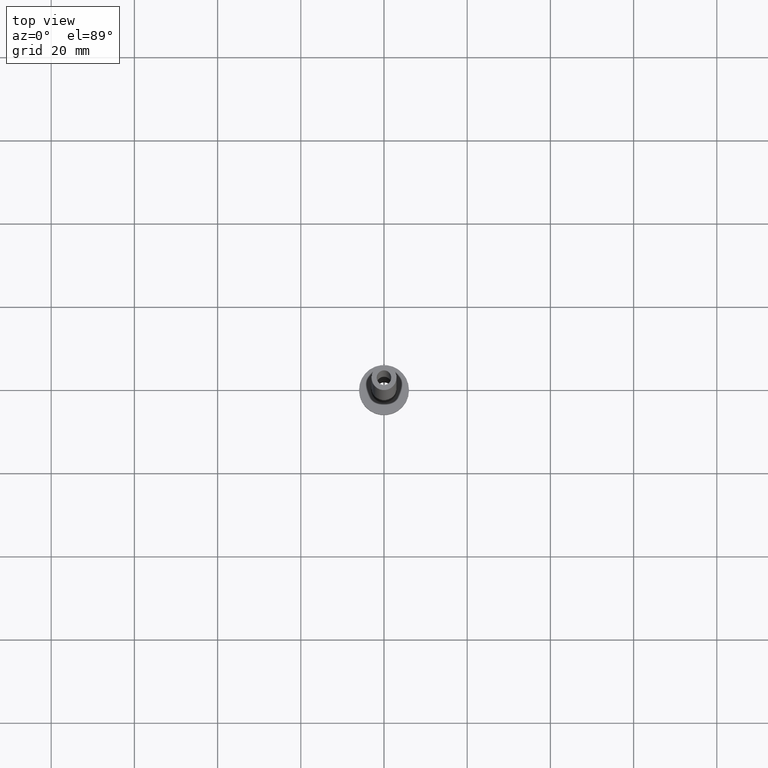
[diagram: clean part render]
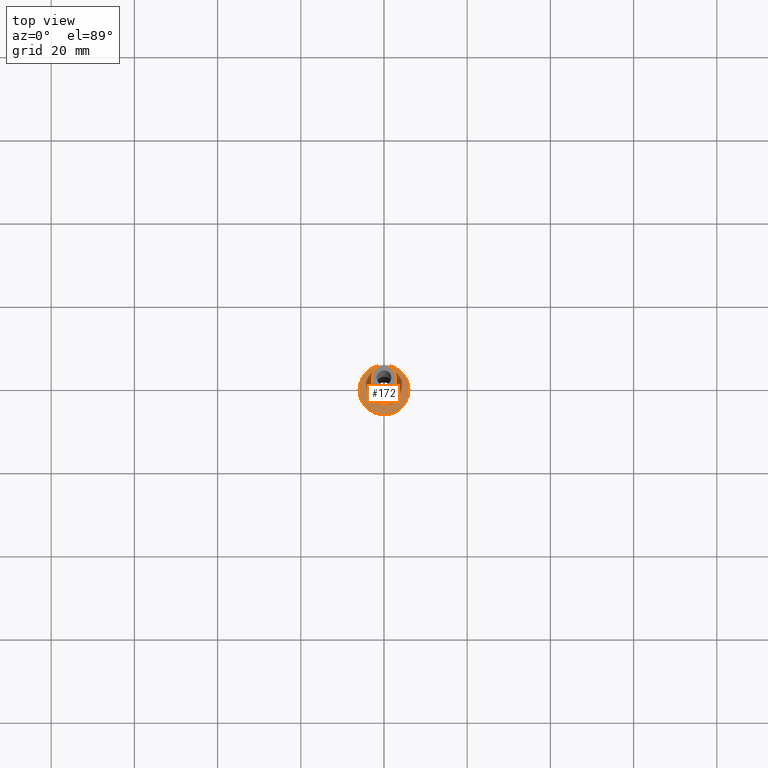
[diagram: same view with one face highlighted and labeled with its STEP entity id]
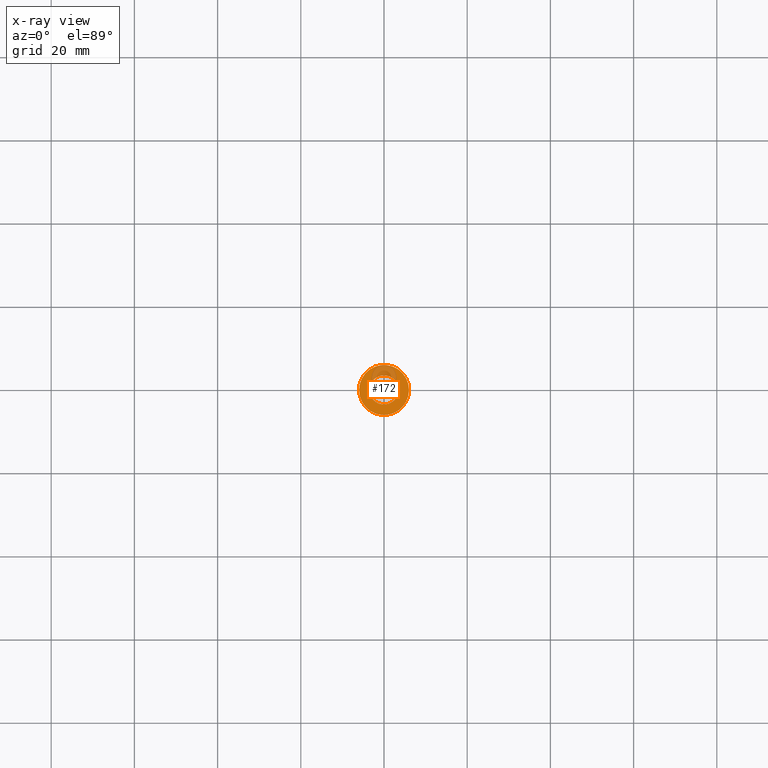
[diagram: x-ray of the same camera — body ghosted, the highlighted face saturated]
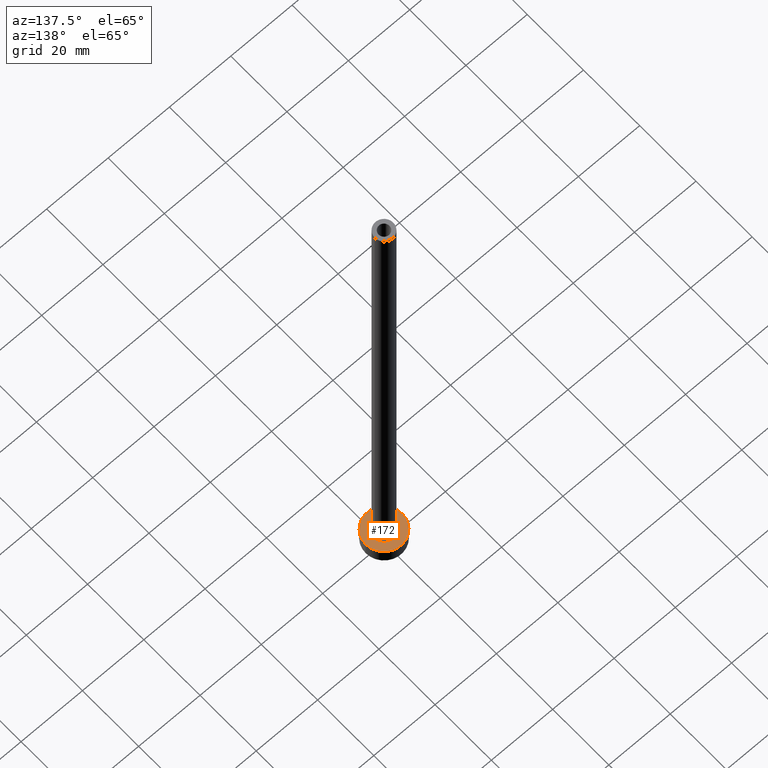
[diagram: same view with one face highlighted and labeled with its STEP entity id]
A machine part, top view. The second image highlights one B-rep face of the part: STEP entity #172.
The next image is the same camera in x-ray: the body ghosted, the highlighted face saturated — about 19% of this face is hidden behind the body in this view.
A second angle (auxiliary view) of the same face is appended — the face is thin or edge-on in the first view.
In plain terms, the highlighted planar face has unit normal (0, 0, 1).
Its self-contained STEP definition (entity closure, byte-faithful):
#21 = EDGE_CURVE ( 'NONE', #342, #180, #291, .T. ) ;
#25 = DIRECTION ( 'NONE',  ( 1.000000000000000000, 0.000000000000000000, 0.000000000000000000 ) ) ;
#62 = CARTESIAN_POINT ( 'NONE',  ( -6.000000000000000888, 0.000000000000000000, 5.000000000000000000 ) ) ;
#66 = DIRECTION ( 'NONE',  ( -0.000000000000000000, -0.000000000000000000, -1.000000000000000000 ) ) ;
#67 = DIRECTION ( 'NONE',  ( 1.000000000000000000, 0.000000000000000000, 0.000000000000000000 ) ) ;
#98 = ORIENTED_EDGE ( 'NONE', *, *, #252, .T. ) ;
#105 = AXIS2_PLACEMENT_3D ( 'NONE', #183, #404, #25 ) ;
#110 = CARTESIAN_POINT ( 'NONE',  ( 0.000000000000000000, 0.000000000000000000, 5.000000000000000000 ) ) ;
#139 = EDGE_CURVE ( 'NONE', #180, #342, #141, .T. ) ;
#141 = CIRCLE ( 'NONE', #405, 6.000000000000000888 ) ;
#142 = CARTESIAN_POINT ( 'NONE',  ( 0.000000000000000000, 0.000000000000000000, 5.000000000000000000 ) ) ;
#144 = AXIS2_PLACEMENT_3D ( 'NONE', #306, #66, #454 ) ;
#148 = ORIENTED_EDGE ( 'NONE', *, *, #21, .T. ) ;
#153 = AXIS2_PLACEMENT_3D ( 'NONE', #142, #163, #185 ) ;
#155 = CARTESIAN_POINT ( 'NONE',  ( 3.500000000000000444, 0.000000000000000000, 5.000000000000002665 ) ) ;
#160 = EDGE_CURVE ( 'NONE', #372, #322, #385, .T. ) ;
#163 = DIRECTION ( 'NONE',  ( 0.000000000000000000, 0.000000000000000000, 1.000000000000000000 ) ) ;
#172 = ADVANCED_FACE ( 'NONE', ( #218, #399 ), #203, .T. ) ;
#173 = EDGE_LOOP ( 'NONE', ( #303, #98 ) ) ;
#175 = AXIS2_PLACEMENT_3D ( 'NONE', #231, #414, #67 ) ;
#180 = VERTEX_POINT ( 'NONE', #272 ) ;
#183 = CARTESIAN_POINT ( 'NONE',  ( 0.000000000000000000, 0.000000000000000000, 5.000000000000000000 ) ) ;
#185 = DIRECTION ( 'NONE',  ( 1.000000000000000000, 0.000000000000000000, -0.000000000000000000 ) ) ;
#203 = PLANE ( 'NONE',  #153 ) ;
#218 = FACE_BOUND ( 'NONE', #173, .T. ) ;
#231 = CARTESIAN_POINT ( 'NONE',  ( 0.000000000000000000, 0.000000000000000000, 5.000000000000000000 ) ) ;
#252 = EDGE_CURVE ( 'NONE', #322, #372, #344, .T. ) ;
#258 = CARTESIAN_POINT ( 'NONE',  ( -3.500000000000000444, 4.286263797015737088E-16, 5.000000000000002665 ) ) ;
#272 = CARTESIAN_POINT ( 'NONE',  ( 6.000000000000000888, 7.347880794884120722E-16, 5.000000000000000000 ) ) ;
#284 = ORIENTED_EDGE ( 'NONE', *, *, #139, .T. ) ;
#291 = CIRCLE ( 'NONE', #105, 6.000000000000000888 ) ;
#303 = ORIENTED_EDGE ( 'NONE', *, *, #160, .T. ) ;
#306 = CARTESIAN_POINT ( 'NONE',  ( 0.000000000000000000, 0.000000000000000000, 5.000000000000000000 ) ) ;
#322 = VERTEX_POINT ( 'NONE', #258 ) ;
#342 = VERTEX_POINT ( 'NONE', #62 ) ;
#344 = CIRCLE ( 'NONE', #144, 3.500000000000000444 ) ;
#362 = DIRECTION ( 'NONE',  ( 0.000000000000000000, 0.000000000000000000, 1.000000000000000000 ) ) ;
#370 = EDGE_LOOP ( 'NONE', ( #148, #284 ) ) ;
#372 = VERTEX_POINT ( 'NONE', #155 ) ;
#385 = CIRCLE ( 'NONE', #175, 3.500000000000000444 ) ;
#399 = FACE_OUTER_BOUND ( 'NONE', #370, .T. ) ;
#404 = DIRECTION ( 'NONE',  ( 0.000000000000000000, 0.000000000000000000, 1.000000000000000000 ) ) ;
#405 = AXIS2_PLACEMENT_3D ( 'NONE', #110, #362, #409 ) ;
#409 = DIRECTION ( 'NONE',  ( 1.000000000000000000, 0.000000000000000000, 0.000000000000000000 ) ) ;
#414 = DIRECTION ( 'NONE',  ( -0.000000000000000000, -0.000000000000000000, -1.000000000000000000 ) ) ;
#454 = DIRECTION ( 'NONE',  ( 1.000000000000000000, 0.000000000000000000, 0.000000000000000000 ) ) ;